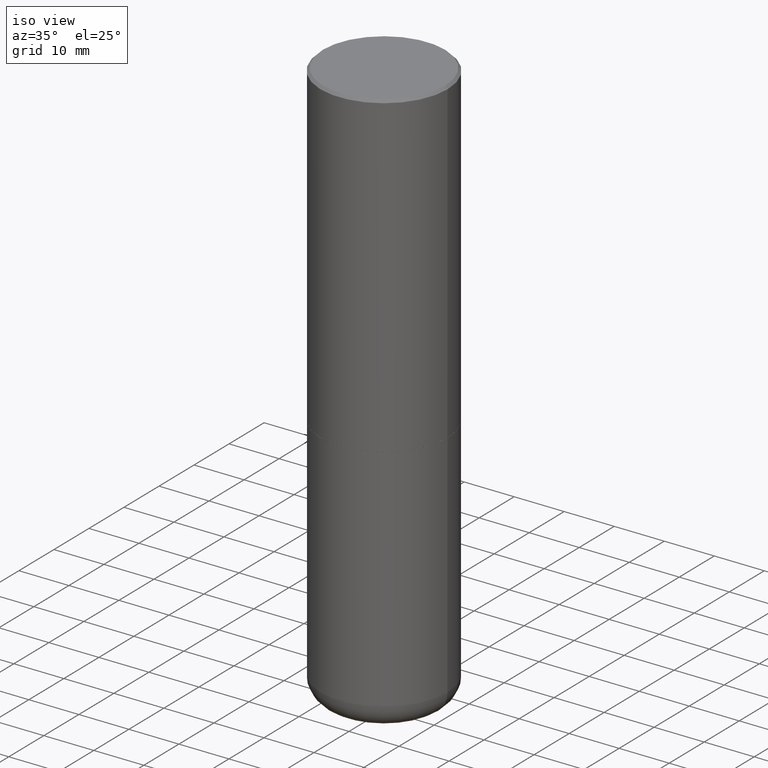
[diagram: clean part render]
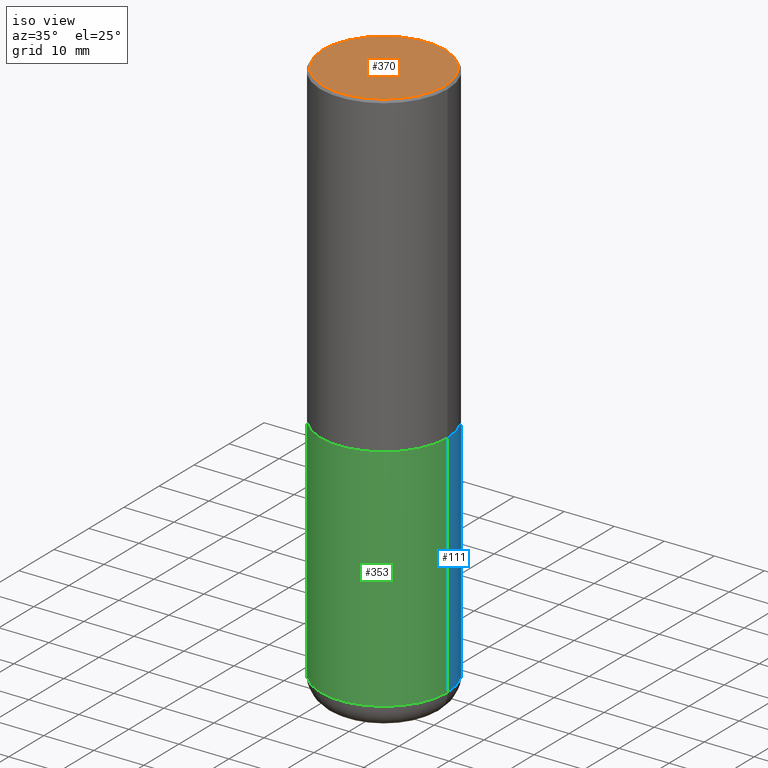
[diagram: same view with three faces highlighted in distinct colors, each labeled with its STEP entity id]
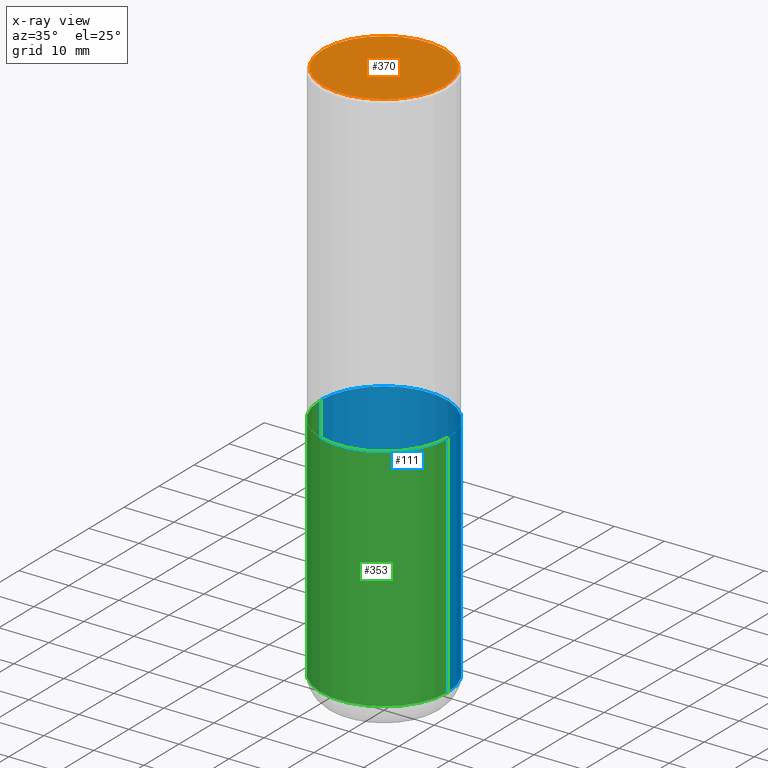
[diagram: x-ray of the same camera — body ghosted, the three highlighted faces saturated]
A machine part, iso view with three faces highlighted in distinct colors.
The next image is the same camera in x-ray (body ghosted, the three faces saturated) — at least one of them is partly hidden behind the body in this view.
Their STEP definitions:

[orange] entity #370 — the highlighted planar face has unit normal (0, -0, -1).
#30 = VERTEX_POINT ( 'NONE', #333 ) ;
#38 = DIRECTION ( 'NONE',  ( -2.445468806185136597E-29, 3.491481338843145583E-15, 1.000000000000000000 ) ) ;
#46 = CARTESIAN_POINT ( 'NONE',  ( 3.351822085289406364E-15, 0.4799999999999998157, -1.547855667941696890E-15 ) ) ;
#50 = DIRECTION ( 'NONE',  ( 2.438088387897960049E-29, -3.491481338843145188E-15, -1.000000000000000000 ) ) ;
#63 = DIRECTION ( 'NONE',  ( 1.000000000000000000, -6.982962677686266711E-15, 4.878011538933552085E-29 ) ) ;
#77 = AXIS2_PLACEMENT_3D ( 'NONE', #174, #372, #63 ) ;
#110 = CARTESIAN_POINT ( 'NONE',  ( 0.4799999999999998157, -3.396558832296481310E-15, 2.561107494060482809E-16 ) ) ;
#117 = AXIS2_PLACEMENT_3D ( 'NONE', #46, #50, #296 ) ;
#134 = EDGE_LOOP ( 'NONE', ( #358, #222 ) ) ;
#163 = AXIS2_PLACEMENT_3D ( 'NONE', #230, #38, #274 ) ;
#174 = CARTESIAN_POINT ( 'NONE',  ( -6.263108486011318684E-45, 8.942059022282684186E-31, 2.561107494060246644E-16 ) ) ;
#191 = FACE_OUTER_BOUND ( 'NONE', #134, .T. ) ;
#215 = EDGE_CURVE ( 'NONE', #30, #311, #308, .T. ) ;
#222 = ORIENTED_EDGE ( 'NONE', *, *, #330, .T. ) ;
#230 = CARTESIAN_POINT ( 'NONE',  ( -6.263108486011318684E-45, 8.942059022282684186E-31, 2.561107494060246644E-16 ) ) ;
#274 = DIRECTION ( 'NONE',  ( 1.000000000000000000, -6.982962677686266711E-15, 4.878011538933552085E-29 ) ) ;
#296 = DIRECTION ( 'NONE',  ( -1.000000000000000000, 6.982962677686265922E-15, -4.876176775795935793E-29 ) ) ;
#308 = CIRCLE ( 'NONE', #77, 0.4799999999999998157 ) ;
#311 = VERTEX_POINT ( 'NONE', #110 ) ;
#327 = PLANE ( 'NONE',  #117 ) ;
#330 = EDGE_CURVE ( 'NONE', #311, #30, #343, .T. ) ;
#333 = CARTESIAN_POINT ( 'NONE',  ( -0.4799999999999998157, 3.386736898677839197E-15, 2.561107494060010972E-16 ) ) ;
#343 = CIRCLE ( 'NONE', #163, 0.4799999999999998157 ) ;
#358 = ORIENTED_EDGE ( 'NONE', *, *, #215, .T. ) ;
#370 = ADVANCED_FACE ( 'NONE', ( #191 ), #327, .F. ) ;
#372 = DIRECTION ( 'NONE',  ( -2.445468806185136597E-29, 3.491481338843145583E-15, 1.000000000000000000 ) ) ;

[blue] entity #111 — the highlighted cylindrical surface (partial cylindrical patch) has radius 12.7 mm, axis along (-0, 0, 1).
#6 = CYLINDRICAL_SURFACE ( 'NONE', #14, 0.5000000000000000000 ) ;
#14 = AXIS2_PLACEMENT_3D ( 'NONE', #359, #322, #398 ) ;
#23 = CIRCLE ( 'NONE', #251, 0.5000000000000000000 ) ;
#29 = VERTEX_POINT ( 'NONE', #173 ) ;
#33 = VERTEX_POINT ( 'NONE', #299 ) ;
#45 = FACE_OUTER_BOUND ( 'NONE', #161, .T. ) ;
#56 = EDGE_CURVE ( 'NONE', #245, #33, #329, .T. ) ;
#66 = ORIENTED_EDGE ( 'NONE', *, *, #211, .F. ) ;
#67 = VERTEX_POINT ( 'NONE', #103 ) ;
#81 = DIRECTION ( 'NONE',  ( -2.445468806185136597E-29, 3.491481338843145583E-15, 1.000000000000000000 ) ) ;
#90 = DIRECTION ( 'NONE',  ( -2.445468806185136877E-29, 3.491481338843145188E-15, 1.000000000000000000 ) ) ;
#91 = VECTOR ( 'NONE', #263, 39.37007874015748143 ) ;
#103 = CARTESIAN_POINT ( 'NONE',  ( -0.4999999999999998335, -1.149557089161345937E-14, -4.310000000000000497 ) ) ;
#111 = ADVANCED_FACE ( 'NONE', ( #45 ), #6, .T. ) ;
#119 = LINE ( 'NONE', #342, #325 ) ;
#146 = EDGE_CURVE ( 'NONE', #245, #67, #395, .T. ) ;
#155 = ORIENTED_EDGE ( 'NONE', *, *, #56, .F. ) ;
#158 = ORIENTED_EDGE ( 'NONE', *, *, #146, .T. ) ;
#161 = EDGE_LOOP ( 'NONE', ( #158, #297, #66, #155 ) ) ;
#173 = CARTESIAN_POINT ( 'NONE',  ( -0.5000000000000000000, -8.335780279960410113E-15, -2.500000000000000000 ) ) ;
#200 = DIRECTION ( 'NONE',  ( -2.445468806185136597E-29, 3.491481338843145583E-15, 1.000000000000000000 ) ) ;
#211 = EDGE_CURVE ( 'NONE', #33, #29, #23, .T. ) ;
#226 = CARTESIAN_POINT ( 'NONE',  ( 1.053997055465793981E-28, -1.504828457041396030E-14, -4.310000000000000497 ) ) ;
#245 = VERTEX_POINT ( 'NONE', #282 ) ;
#251 = AXIS2_PLACEMENT_3D ( 'NONE', #374, #200, #336 ) ;
#263 = DIRECTION ( 'NONE',  ( -2.445468806185136877E-29, 3.491481338843145188E-15, 1.000000000000000000 ) ) ;
#282 = CARTESIAN_POINT ( 'NONE',  ( 0.4999999999999998335, -1.853976590925709365E-14, -4.310000000000000497 ) ) ;
#291 = CARTESIAN_POINT ( 'NONE',  ( 0.5000000000000000000, -3.491481338843133355E-15, 2.438088387897967896E-29 ) ) ;
#297 = ORIENTED_EDGE ( 'NONE', *, *, #400, .T. ) ;
#299 = CARTESIAN_POINT ( 'NONE',  ( 0.5000000000000000000, -1.222018468595099830E-14, -2.500000000000000000 ) ) ;
#322 = DIRECTION ( 'NONE',  ( -2.445468806185136597E-29, 3.491481338843145583E-15, 1.000000000000000000 ) ) ;
#325 = VECTOR ( 'NONE', #90, 39.37007874015748143 ) ;
#328 = DIRECTION ( 'NONE',  ( 1.000000000000000000, -6.982962677686270655E-15, 0.000000000000000000 ) ) ;
#329 = LINE ( 'NONE', #291, #91 ) ;
#336 = DIRECTION ( 'NONE',  ( 1.000000000000000000, -6.982962677686269077E-15, 0.000000000000000000 ) ) ;
#342 = CARTESIAN_POINT ( 'NONE',  ( -0.5000000000000000000, 3.552713678800500929E-15, -2.459467545127452891E-29 ) ) ;
#359 = CARTESIAN_POINT ( 'NONE',  ( 0.000000000000000000, 0.000000000000000000, 0.000000000000000000 ) ) ;
#374 = CARTESIAN_POINT ( 'NONE',  ( 6.113672015462842613E-29, -8.728703347107864943E-15, -2.500000000000000000 ) ) ;
#395 = CIRCLE ( 'NONE', #406, 0.5000000000000000000 ) ;
#398 = DIRECTION ( 'NONE',  ( 1.000000000000000000, -6.982962677686266711E-15, 4.876176775795935793E-29 ) ) ;
#400 = EDGE_CURVE ( 'NONE', #67, #29, #119, .T. ) ;
#406 = AXIS2_PLACEMENT_3D ( 'NONE', #226, #81, #328 ) ;

[green] entity #353 — the highlighted cylindrical surface (partial cylindrical patch) has radius 12.7 mm, axis along (-0, 0, 1).
#10 = AXIS2_PLACEMENT_3D ( 'NONE', #319, #246, #100 ) ;
#29 = VERTEX_POINT ( 'NONE', #173 ) ;
#33 = VERTEX_POINT ( 'NONE', #299 ) ;
#56 = EDGE_CURVE ( 'NONE', #245, #33, #329, .T. ) ;
#67 = VERTEX_POINT ( 'NONE', #103 ) ;
#79 = CARTESIAN_POINT ( 'NONE',  ( 1.053997055465793981E-28, -1.504828457041396030E-14, -4.310000000000000497 ) ) ;
#82 = DIRECTION ( 'NONE',  ( -2.445468806185136597E-29, 3.491481338843145583E-15, 1.000000000000000000 ) ) ;
#90 = DIRECTION ( 'NONE',  ( -2.445468806185136877E-29, 3.491481338843145188E-15, 1.000000000000000000 ) ) ;
#91 = VECTOR ( 'NONE', #263, 39.37007874015748143 ) ;
#100 = DIRECTION ( 'NONE',  ( 1.000000000000000000, -6.982962677686269077E-15, 0.000000000000000000 ) ) ;
#103 = CARTESIAN_POINT ( 'NONE',  ( -0.4999999999999998335, -1.149557089161345937E-14, -4.310000000000000497 ) ) ;
#106 = DIRECTION ( 'NONE',  ( 1.000000000000000000, -6.982962677686266711E-15, 4.876176775795935793E-29 ) ) ;
#119 = LINE ( 'NONE', #342, #325 ) ;
#120 = CIRCLE ( 'NONE', #141, 0.5000000000000000000 ) ;
#128 = ORIENTED_EDGE ( 'NONE', *, *, #56, .T. ) ;
#141 = AXIS2_PLACEMENT_3D ( 'NONE', #79, #82, #292 ) ;
#156 = CIRCLE ( 'NONE', #10, 0.5000000000000000000 ) ;
#173 = CARTESIAN_POINT ( 'NONE',  ( -0.5000000000000000000, -8.335780279960410113E-15, -2.500000000000000000 ) ) ;
#184 = AXIS2_PLACEMENT_3D ( 'NONE', #323, #288, #106 ) ;
#245 = VERTEX_POINT ( 'NONE', #282 ) ;
#246 = DIRECTION ( 'NONE',  ( -2.445468806185136597E-29, 3.491481338843145583E-15, 1.000000000000000000 ) ) ;
#257 = EDGE_LOOP ( 'NONE', ( #321, #313, #128, #318 ) ) ;
#259 = FACE_OUTER_BOUND ( 'NONE', #257, .T. ) ;
#263 = DIRECTION ( 'NONE',  ( -2.445468806185136877E-29, 3.491481338843145188E-15, 1.000000000000000000 ) ) ;
#282 = CARTESIAN_POINT ( 'NONE',  ( 0.4999999999999998335, -1.853976590925709365E-14, -4.310000000000000497 ) ) ;
#288 = DIRECTION ( 'NONE',  ( -2.445468806185136597E-29, 3.491481338843145583E-15, 1.000000000000000000 ) ) ;
#291 = CARTESIAN_POINT ( 'NONE',  ( 0.5000000000000000000, -3.491481338843133355E-15, 2.438088387897967896E-29 ) ) ;
#292 = DIRECTION ( 'NONE',  ( 1.000000000000000000, -6.982962677686270655E-15, 0.000000000000000000 ) ) ;
#298 = EDGE_CURVE ( 'NONE', #67, #245, #120, .T. ) ;
#299 = CARTESIAN_POINT ( 'NONE',  ( 0.5000000000000000000, -1.222018468595099830E-14, -2.500000000000000000 ) ) ;
#313 = ORIENTED_EDGE ( 'NONE', *, *, #298, .T. ) ;
#318 = ORIENTED_EDGE ( 'NONE', *, *, #405, .F. ) ;
#319 = CARTESIAN_POINT ( 'NONE',  ( 6.113672015462842613E-29, -8.728703347107864943E-15, -2.500000000000000000 ) ) ;
#321 = ORIENTED_EDGE ( 'NONE', *, *, #400, .F. ) ;
#323 = CARTESIAN_POINT ( 'NONE',  ( 0.000000000000000000, 0.000000000000000000, 0.000000000000000000 ) ) ;
#325 = VECTOR ( 'NONE', #90, 39.37007874015748143 ) ;
#329 = LINE ( 'NONE', #291, #91 ) ;
#342 = CARTESIAN_POINT ( 'NONE',  ( -0.5000000000000000000, 3.552713678800500929E-15, -2.459467545127452891E-29 ) ) ;
#353 = ADVANCED_FACE ( 'NONE', ( #259 ), #394, .T. ) ;
#394 = CYLINDRICAL_SURFACE ( 'NONE', #184, 0.5000000000000000000 ) ;
#400 = EDGE_CURVE ( 'NONE', #67, #29, #119, .T. ) ;
#405 = EDGE_CURVE ( 'NONE', #29, #33, #156, .T. ) ;